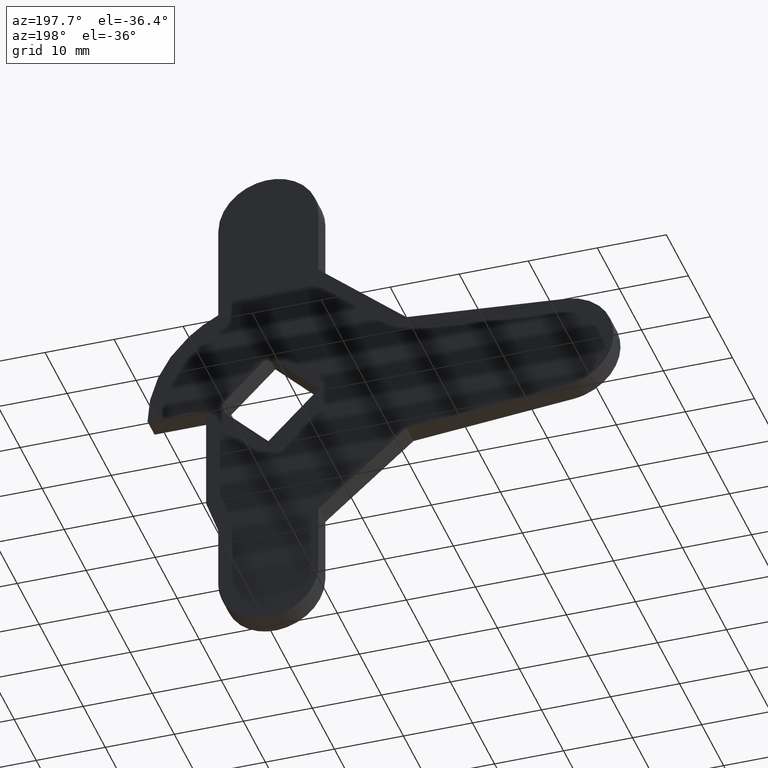
[diagram: clean part render]
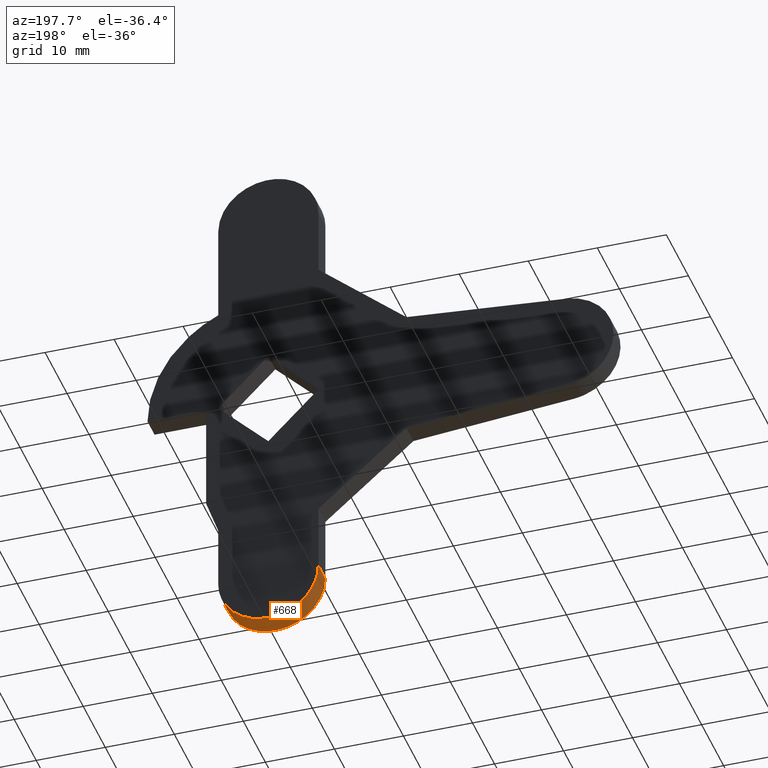
[diagram: same view with one face highlighted and labeled with its STEP entity id]
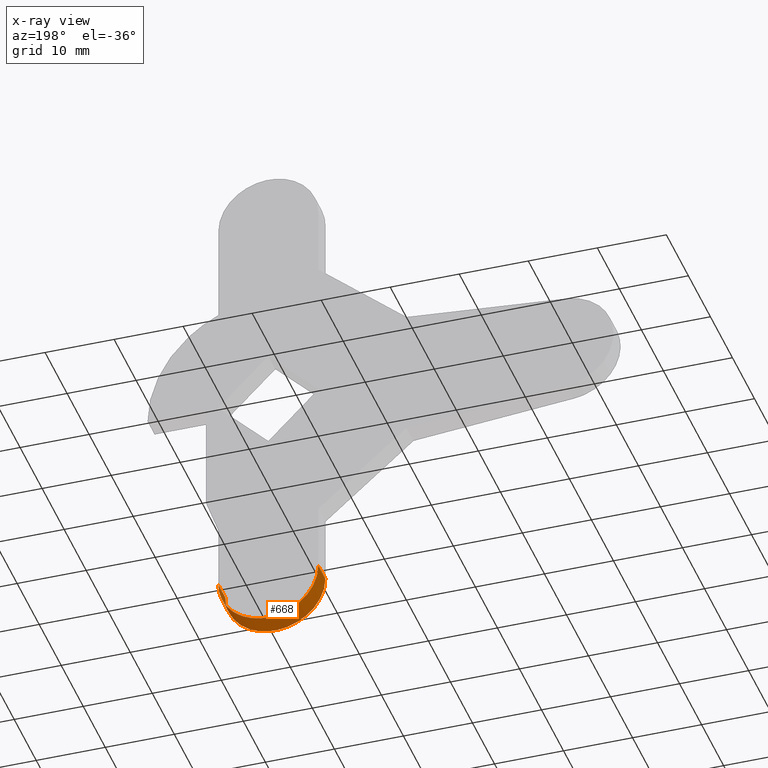
[diagram: x-ray of the same camera — body ghosted, the highlighted face saturated]
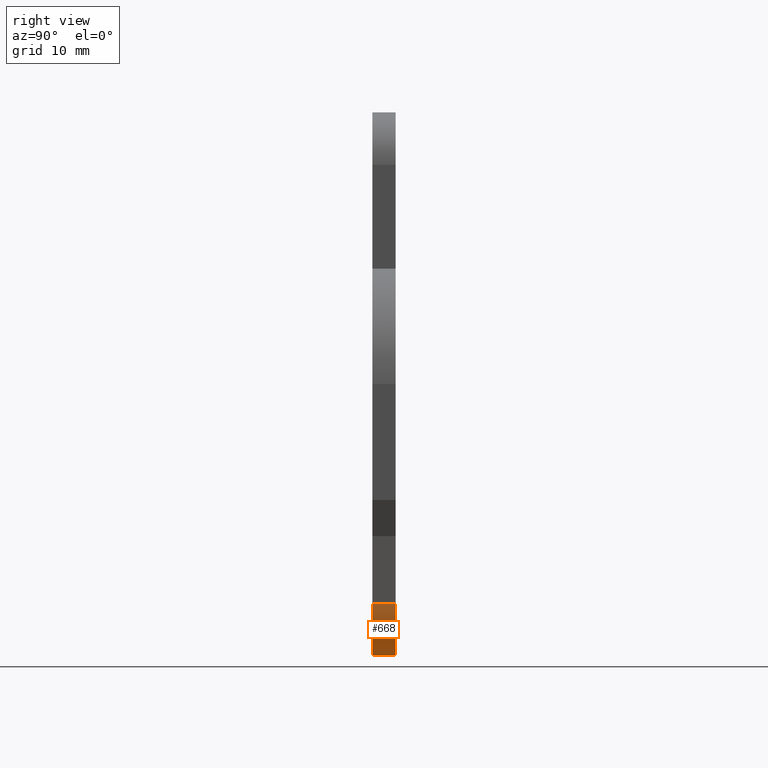
[diagram: same view with one face highlighted and labeled with its STEP entity id]
A machine part, auxiliary view. The second image highlights one B-rep face of the part: STEP entity #668.
The next image is the same camera in x-ray: the body ghosted, the highlighted face saturated — about 0% of this face is hidden behind the body in this view.
A second angle (right view) of the same face is appended — the face is thin or edge-on in the first view.
In plain terms, the highlighted face is a freeform B-spline surface patch.
Its self-contained STEP definition (entity closure, byte-faithful):
#132=CARTESIAN_POINT('',(7.250000000000000,0.0,-30.250000000000000));
#133=VERTEX_POINT('',#132);
#139=CARTESIAN_POINT('',(-7.250000000000100,0.0,-30.250000000000000));
#140=VERTEX_POINT('',#139);
#141=CARTESIAN_POINT('',(-7.250000000000000,0.0,-30.250000000000000));
#142=CARTESIAN_POINT('',(-7.250000000000000,0.0,-37.499999999999993));
#143=CARTESIAN_POINT('',(0.0,0.0,-37.500000000000000));
#144=CARTESIAN_POINT('',(7.250000000000000,0.0,-37.499999999999993));
#145=CARTESIAN_POINT('',(7.250000000000000,0.0,-30.250000000000000));
#153=(BOUNDED_CURVE()B_SPLINE_CURVE(2,(#141,#142,#143,#144,#145),.UNSPECIFIED.,.F.,.U.)B_SPLINE_CURVE_WITH_KNOTS((3,2,3),(0.0,0.500000000000000,1.0),.UNSPECIFIED.)CURVE()GEOMETRIC_REPRESENTATION_ITEM()RATIONAL_B_SPLINE_CURVE((1.0,0.707106781186548,1.0,0.707106781186548,1.0))REPRESENTATION_ITEM(''));
#154=EDGE_CURVE('',#140,#133,#153,.T.);
#270=CARTESIAN_POINT('',(-7.250000000000100,-3.199999999999870,-30.250000000000000));
#271=VERTEX_POINT('',#270);
#277=CARTESIAN_POINT('',(7.250000000000000,-3.199999999999870,-30.250000000000000));
#278=VERTEX_POINT('',#277);
#279=CARTESIAN_POINT('',(-7.250000000000000,-3.199999999999870,-30.250000000000000));
#280=CARTESIAN_POINT('',(-7.250000000000000,-3.199999999999870,-37.499999999999993));
#281=CARTESIAN_POINT('',(0.0,-3.199999999999870,-37.500000000000000));
#282=CARTESIAN_POINT('',(7.250000000000000,-3.199999999999870,-37.499999999999993));
#283=CARTESIAN_POINT('',(7.250000000000000,-3.199999999999870,-30.250000000000000));
#291=(BOUNDED_CURVE()B_SPLINE_CURVE(2,(#279,#280,#281,#282,#283),.UNSPECIFIED.,.F.,.U.)B_SPLINE_CURVE_WITH_KNOTS((3,2,3),(0.0,0.500000000000000,1.0),.UNSPECIFIED.)CURVE()GEOMETRIC_REPRESENTATION_ITEM()RATIONAL_B_SPLINE_CURVE((1.0,0.707106781186548,1.0,0.707106781186548,1.0))REPRESENTATION_ITEM(''));
#292=EDGE_CURVE('',#271,#278,#291,.T.);
#632=CARTESIAN_POINT('',(7.250000000000000,-3.199999999999870,-30.250000000000000));
#633=CARTESIAN_POINT('',(7.250000000000000,0.0,-30.250000000000000));
#634=QUASI_UNIFORM_CURVE('',1,(#632,#633),.UNSPECIFIED.,.F.,.U.);
#635=EDGE_CURVE('',#278,#133,#634,.T.);
#640=CARTESIAN_POINT('',(-7.247515606072788,-3.279999999999868,-30.060217124767910));
#641=CARTESIAN_POINT('',(-7.247515606072788,0.081999999999997,-30.060217124767910));
#642=CARTESIAN_POINT('',(-7.445765383914885,-3.279999999999867,-37.631070696534827));
#643=CARTESIAN_POINT('',(-7.445765383914885,0.081999999999997,-37.631070696534827));
#644=CARTESIAN_POINT('',(0.126529946670296,-3.279999999999868,-37.498895789883832));
#645=CARTESIAN_POINT('',(0.126529946670296,0.081999999999997,-37.498895789883832));
#646=CARTESIAN_POINT('',(7.698825277255470,-3.279999999999867,-37.366720883232837));
#647=CARTESIAN_POINT('',(7.698825277255470,0.081999999999997,-37.366720883232837));
#648=CARTESIAN_POINT('',(7.236477288558529,-3.279999999999868,-29.807398088372299));
#649=CARTESIAN_POINT('',(7.236477288558529,0.081999999999997,-29.807398088372299));
#657=(BOUNDED_SURFACE()B_SPLINE_SURFACE(1,2,((#640,#642,#644,#646,#648),(#641,#643,#645,#647,#649)),.UNSPECIFIED.,.F.,.F.,.U.)B_SPLINE_SURFACE_WITH_KNOTS((2,2),(3,2,3),(0.0,3.361999999999864),(0.0,12.384506775234360,24.769013550468731),.UNSPECIFIED.)GEOMETRIC_REPRESENTATION_ITEM()RATIONAL_B_SPLINE_SURFACE(((1.0,0.691513055782269,1.0,0.691513055782269,1.0),(1.0,0.691513055782269,1.0,0.691513055782269,1.0)))REPRESENTATION_ITEM('')SURFACE());
#658=ORIENTED_EDGE('',*,*,#154,.T.);
#659=ORIENTED_EDGE('',*,*,#635,.F.);
#660=ORIENTED_EDGE('',*,*,#292,.F.);
#661=CARTESIAN_POINT('',(-7.250000000000100,-3.199999999999870,-30.250000000000000));
#662=CARTESIAN_POINT('',(-7.250000000000100,0.0,-30.250000000000000));
#663=QUASI_UNIFORM_CURVE('',1,(#661,#662),.UNSPECIFIED.,.F.,.U.);
#664=EDGE_CURVE('',#271,#140,#663,.T.);
#665=ORIENTED_EDGE('',*,*,#664,.T.);
#666=EDGE_LOOP('',(#658,#659,#660,#665));
#667=FACE_OUTER_BOUND('',#666,.T.);
#668=ADVANCED_FACE('',(#667),#657,.T.);